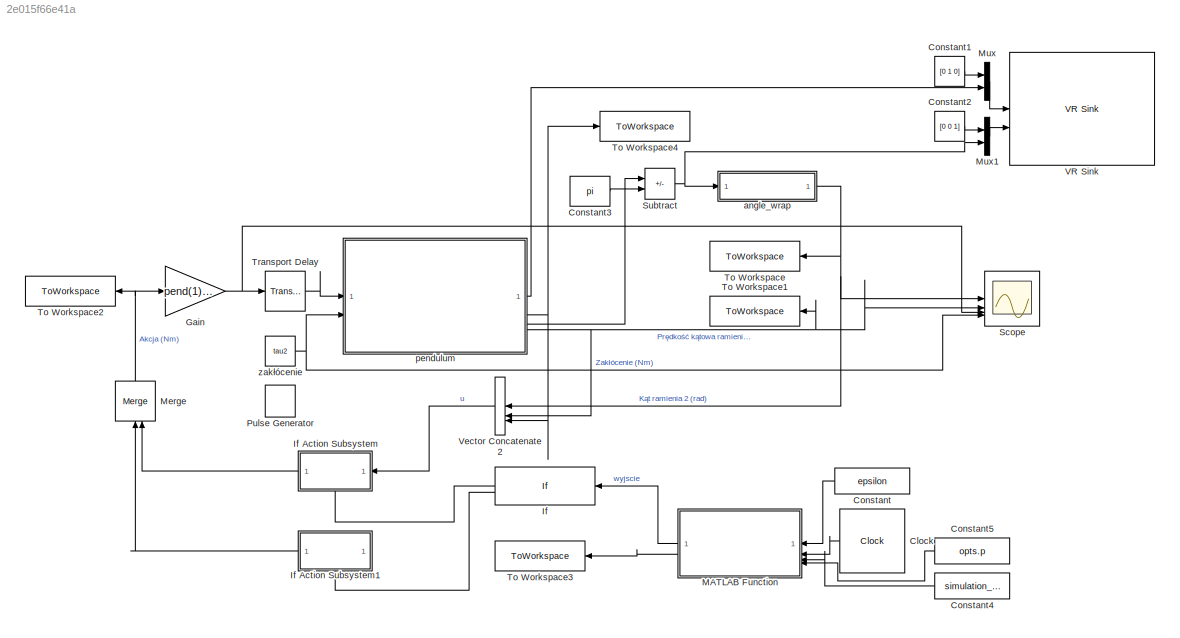
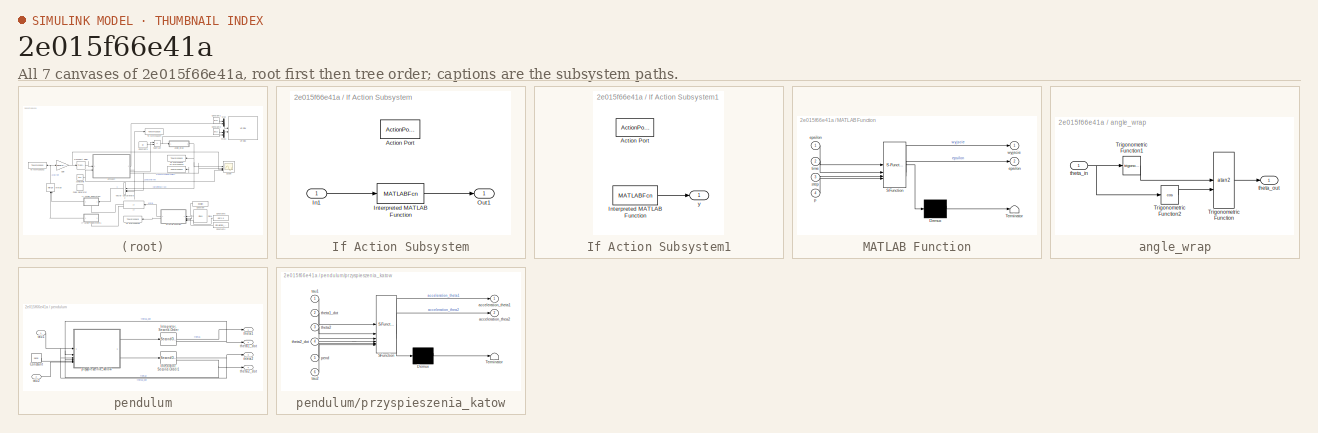
[diagram: thumbnail index - all 7 canvases of the model, root first then tree order]
MODEL slx_2e015f66e41a
KIND model
CONFIG AbsTol = 1e-6
CONFIG EnableMultiTasking = off
CONFIG FixedStep = 0.05
CONFIG MaxStep = auto
CONFIG MinStep = auto
CONFIG PreLoadFcn = theta1_ddot=0;\ntheta2_ddot=0;\n
CONFIG RelTol = 1e-5
CONFIG SampleTimeConstraint = Unconstrained
CONFIG SolverName = ode45
CONFIG StartTime = 0.0
CONFIG StopTime = simulation_time
WORKSPACE source: mxarray member
WORKSPACE epsilon = 1
WORKSPACE pend = [0.036 0 0.05 0.1 0.022 0.05 0.045 0.015 -0.005 -5e-05 9.81 4.356e-05 ... (14 elements, 1x14)]
WORKSPACE simulation_step = 0.025
WORKSPACE simulation_time = 25
WORKSPACE theta0 = 0
WORKSPACE theta1 = 0
WORKSPACE theta10 = 0
WORKSPACE theta10_dot = 10
WORKSPACE theta1_dot = 0
WORKSPACE theta2 = 0
WORKSPACE theta20 = 0
WORKSPACE theta20_dot = 0
WORKSPACE theta2_dot = 0
WORKSPACE theta_dot = 0
BLOCK [Clock] Clock
  DisplayTime = on
  NameLocation = top
BLOCK [Constant] Constant
  NameLocation = top
  SampleTime = simulation_step
  Value = epsilon
BLOCK [Constant] Constant1
  Value = [0 1 0]
BLOCK [Constant] Constant2
  Value = [0 0 1]
BLOCK [Constant] Constant3
  Value = pi
BLOCK [Constant] Constant4
  NameLocation = top
  SampleTime = simulation_step
  Value = simulation_step
BLOCK [Constant] Constant5
  NameLocation = top
  SampleTime = simulation_step
  Value = opts.p
BLOCK [Gain] Gain
  Gain = pend(1)/2
BLOCK [If] If
  IfExpression = u1 > 0.5
  NameLocation = top
BLOCK [SubSystem] If Action Subsystem
  NameLocation = top
  TreatAsAtomicUnit = on
BLOCK [ActionPort] If Action Subsystem/Action Port
  ActionPortLabel = if(u1 > 0.5)
BLOCK [Inport] If Action Subsystem/In1
  SampleTime = simulation_step
BLOCK [MATLABFcn] If Action Subsystem/Interpreted MATLAB Function
  MATLABFcn = a.calculateaction(u)
BLOCK [Outport] If Action Subsystem/Out1
  SampleTime = simulation_step
BLOCK [SubSystem] If Action Subsystem1
  NameLocation = top
  TreatAsAtomicUnit = on
BLOCK [ActionPort] If Action Subsystem1/Action Port
  ActionPortLabel = else
BLOCK [MATLABFcn] If Action Subsystem1/Interpreted MATLAB Function
  MATLABFcn = a.randaction
BLOCK [Outport] If Action Subsystem1/y
  SampleTime = simulation_step
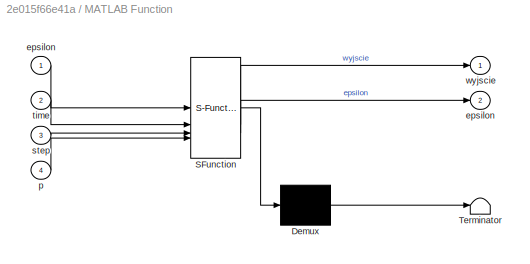
BLOCK [SubSystem] MATLAB Function
  ErrorFcn = Stateflow.Translate.translate
  NameLocation = top
  PermitHierarchicalResolution = ExplicitOnly
  SFBlockType = MATLAB Function
  SystemSampleTime = 0.025
  TreatAsAtomicUnit = on
BLOCK [Demux] MATLAB Function/ Demux 
  Outputs = 1
BLOCK [S-Function] MATLAB Function/ SFunction 
  EnableBusSupport = on
  FunctionName = sf_sfun
  PortCounts = [4 3]
  SFcnIsStateOwnerBlock = off
  SFunctionDeploymentMode = off
  Tag = Stateflow S-Function 2
BLOCK [Terminator] MATLAB Function/ Terminator 
BLOCK [Outport] MATLAB Function/epsilon
  Port = 2
BLOCK [Inport] MATLAB Function/epsilon 
BLOCK [Inport] MATLAB Function/p
  Port = 4
BLOCK [Inport] MATLAB Function/step
  Port = 3
BLOCK [Inport] MATLAB Function/time
  Port = 2
BLOCK [Outport] MATLAB Function/wyjscie
BLOCK [Merge] Merge
  NameLocation = right
BLOCK [Mux] Mux
  DisplayOption = bar
  Inputs = 2
BLOCK [Mux] Mux1
  DisplayOption = bar
  Inputs = 2
BLOCK [DiscretePulseGenerator] Pulse Generator
  Amplitude = 0.066
  Commented = on
  Period = 5
  PhaseDelay = 5
  PulseType = Time based
  PulseWidth = 0.05
BLOCK [Scope] Scope
  Floating = off
  NumInputPorts = 4
  ScopeSpecificationString = Simulink.scopes.TimeScopeBlockCfg('CurrentConfiguration', extmgr.ConfigurationSet(extmgr.Configuration('Core','General UI',true,'FigureColor',[0 0 0]),extmgr.Configuration('Core','Source UI',true),extmgr.Configuration('Sources','WiredSimulink',true),extmgr.Configuration('Visuals','Time Domain',true,'SerializedDisplays',{struct('MinYLimReal','-9.92765','MaxYLimReal','13.3202','YLabelReal','','MinYL...<+1619ch>
BLOCK [Sum] Subtract
  IconShape = rectangular
  Inputs = +-
BLOCK [ToWorkspace] To Workspace
  FixptAsFi = on
  MaxDataPoints = inf
  NameLocation = top
  SampleTime = simulation_step
  VariableName = kat
BLOCK [ToWorkspace] To Workspace1
  FixptAsFi = on
  MaxDataPoints = inf
  NameLocation = top
  SampleTime = simulation_step
  VariableName = predkosc_katowa
BLOCK [ToWorkspace] To Workspace2
  FixptAsFi = on
  MaxDataPoints = inf
  NameLocation = top
  SampleTime = simulation_step
  VariableName = akcja1
BLOCK [ToWorkspace] To Workspace3
  FixptAsFi = on
  MaxDataPoints = inf
  NameLocation = top
  SampleTime = simulation_step
  VariableName = epsilon
BLOCK [ToWorkspace] To Workspace4
  FixptAsFi = on
  MaxDataPoints = inf
  SampleTime = simulation_step
  VariableName = predkosc_katowa_2
BLOCK [TransportDelay] Transport Delay
  DelayTime = opts.t_delay
BLOCK [Reference] VR Sink  REF=vrlib/VR Sink
  InstantiateOnLoad = on
  SourceBlock = vrlib/VR Sink
  SourceType = Virtual Reality Sink
BLOCK [Concatenate] Vector Concatenate2
  NameLocation = top
  NumInputs = 3
BLOCK [SubSystem] angle_wrap
BLOCK [Trigonometry] angle_wrap/Trigonometric Function
  Operator = atan2
BLOCK [Trigonometry] angle_wrap/Trigonometric Function1
BLOCK [Trigonometry] angle_wrap/Trigonometric Function2
  Operator = cos
BLOCK [Inport] angle_wrap/theta_in
  SampleTime = simulation_step
BLOCK [Outport] angle_wrap/theta_out
  SampleTime = simulation_step
  VectorParamsAs1DForOutWhenUnconnected = off
BLOCK [SubSystem] pendulum
BLOCK [Constant] pendulum/Constant
  SampleTime = 1
  Value = pend
BLOCK [SecondOrderIntegrator] pendulum/Integrator, Second-Order
  ICDXDT = theta10_dot
  ICX = theta10
  LimitDXDT = on
  LowerLimitDXDT = -20
  LowerLimitX = 0
  StateNameDXDT = 'theta1_dot'
  StateNameX = 'theta1'
  UpperLimitDXDT = 20
  UpperLimitX = 1
  WrapX = on
  WrappedLowerValueX = 0
  WrappedUpperValueX = 2*pi
BLOCK [SecondOrderIntegrator] pendulum/Integrator, Second-Order1
  ICDXDT = theta20_dot
  ICX = theta20
  LimitDXDT = on
  LowerLimitDXDT = -40
  LowerLimitX = 0
  StateNameDXDT = 'theta2_dot'
  StateNameX = 'theta2'
  UpperLimitDXDT = 40
  UpperLimitX = 1
  WrapX = on
  WrappedLowerValueX = 0
  WrappedUpperValueX = 2*pi
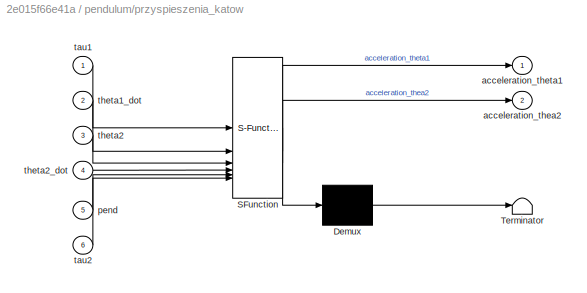
BLOCK [SubSystem] pendulum/przyspieszenia_katow
  ErrorFcn = Stateflow.Translate.translate
  PermitHierarchicalResolution = ExplicitOnly
  SFBlockType = MATLAB Function
  SystemSampleTime = 0.0
  TreatAsAtomicUnit = on
BLOCK [Demux] pendulum/przyspieszenia_katow/ Demux 
  Outputs = 1
BLOCK [S-Function] pendulum/przyspieszenia_katow/ SFunction 
  EnableBusSupport = on
  FunctionName = sf_sfun
  PortCounts = [6 3]
  SFcnIsStateOwnerBlock = off
  SFunctionDeploymentMode = off
  Tag = Stateflow S-Function 3
BLOCK [Terminator] pendulum/przyspieszenia_katow/ Terminator 
BLOCK [Outport] pendulum/przyspieszenia_katow/acceleration_thea2
  Port = 2
BLOCK [Outport] pendulum/przyspieszenia_katow/acceleration_theta1
BLOCK [Inport] pendulum/przyspieszenia_katow/pend
  Port = 5
BLOCK [Inport] pendulum/przyspieszenia_katow/tau1
BLOCK [Inport] pendulum/przyspieszenia_katow/tau2
  Port = 6
BLOCK [Inport] pendulum/przyspieszenia_katow/theta1_dot
  Port = 2
BLOCK [Inport] pendulum/przyspieszenia_katow/theta2
  Port = 3
BLOCK [Inport] pendulum/przyspieszenia_katow/theta2_dot
  Port = 4
BLOCK [Inport] pendulum/tau1
BLOCK [Inport] pendulum/tau2
  Port = 2
BLOCK [Outport] pendulum/theta1
  VectorParamsAs1DForOutWhenUnconnected = off
BLOCK [Outport] pendulum/theta1_dot
  Port = 2
  VectorParamsAs1DForOutWhenUnconnected = off
BLOCK [Outport] pendulum/theta2
  Port = 3
  VectorParamsAs1DForOutWhenUnconnected = off
BLOCK [Outport] pendulum/theta2_dot
  Port = 4
  VectorParamsAs1DForOutWhenUnconnected = off
BLOCK [Constant] zakłócenie
  Value = tau2
LINE Clock:1 -> MATLAB Function:2
LINE Constant1:1 -> Mux:1
LINE Constant2:1 -> Mux1:1
LINE Constant3:1 -> Subtract:2
LINE Constant4:1 -> MATLAB Function:3
LINE Constant5:1 -> MATLAB Function:4
LINE Constant:1 -> MATLAB Function:1
NET Gain:1 -> Scope:3, Transport Delay:1
LINE If Action Subsystem/In1:1 -> If Action Subsystem/Interpreted MATLAB Function:1
LINE If Action Subsystem/Interpreted MATLAB Function:1 -> If Action Subsystem/Out1:1
LINE If Action Subsystem1/Interpreted MATLAB Function:1 -> If Action Subsystem1/y:1
LINE If Action Subsystem1:1 -> Merge:1
LINE If Action Subsystem:1 -> Merge:2
LINE If:1 -> If Action Subsystem:ifaction
LINE If:2 -> If Action Subsystem1:ifaction
LINE MATLAB Function:1 -> If:1
LINE MATLAB Function:2 -> To Workspace3:1
NET Merge:1 -> Gain:1, To Workspace2:1
LINE Mux1:1 -> VR Sink:2
LINE Mux:1 -> VR Sink:1
NET Subtract:1 -> Mux1:2, angle_wrap:1
LINE Transport Delay:1 -> pendulum:1
LINE Vector Concatenate2:1 -> If Action Subsystem:1
LINE angle_wrap/Trigonometric Function1:1 -> angle_wrap/Trigonometric Function:1
LINE angle_wrap/Trigonometric Function2:1 -> angle_wrap/Trigonometric Function:2
LINE angle_wrap/Trigonometric Function:1 -> angle_wrap/theta_out:1
NET angle_wrap/theta_in:1 -> angle_wrap/Trigonometric Function1:1, angle_wrap/Trigonometric Function2:1
NET angle_wrap:1 -> Scope:1, To Workspace:1, Vector Concatenate2:1
LINE pendulum/Constant:1 -> pendulum/przyspieszenia_katow:5
NET pendulum/Integrator, Second-Order1:1 -> pendulum/przyspieszenia_katow:3, pendulum/theta2:1
NET pendulum/Integrator, Second-Order1:2 -> pendulum/przyspieszenia_katow:4, pendulum/theta2_dot:1
LINE pendulum/Integrator, Second-Order:1 -> pendulum/theta1:1
NET pendulum/Integrator, Second-Order:2 -> pendulum/przyspieszenia_katow:2, pendulum/theta1_dot:1
LINE pendulum/przyspieszenia_katow:1 -> pendulum/Integrator, Second-Order:1
LINE pendulum/przyspieszenia_katow:2 -> pendulum/Integrator, Second-Order1:1
LINE pendulum/tau1:1 -> pendulum/przyspieszenia_katow:1
LINE pendulum/tau2:1 -> pendulum/przyspieszenia_katow:6
LINE pendulum:1 -> Mux:2
NET pendulum:2 -> To Workspace4:1, Vector Concatenate2:3
LINE pendulum:3 -> Subtract:1
NET pendulum:4 -> Scope:2, To Workspace1:1, Vector Concatenate2:2
NET zakłócenie:1 -> Scope:4, pendulum:2
note: NET lines group one-source signal fan-out (src -> all destinations, sorted); 1:1 wires keep LINE
CHART MATLAB Function states=1 transitions=1
  STATE_LABEL 'eML_blk_kernel()'
  STATE_LABEL 'SCRIPT:\nfunction [wyjscie,epsilon] = fcn(epsilon,time,step,p)\n\nif(epsilon>=0.02)\nepsilon = max(epsilon*(p)^(time/step), 0.02);\nelse\nepsilon=epsilon;\nend\n\nif (unifrnd(0, 1) < epsilon)\n    wyjscie=0;\nelse\n    wyjscie=1;  \nend'
CHART pendulum/przyspieszenia_katow states=1 transitions=1
  STATE_LABEL 'eML_blk_kernel()'
  STATE_LABEL 'SCRIPT:\nfunction [acceleration_theta1,acceleration_thea2] = fcn1(tau1,theta1_dot, theta2, theta2_dot,pend,tau2)\n\npend(2)=tau2;\n\nX = [pend(14)+pend(13)*(sin(theta2))^2 pend(8)*pend(3)*pend(6)*cos(theta2);pend(8)*pend(3)*pend(6)*cos(theta2) pend(13)]^(-1) * ...\n    ([pend(9)+0.5*theta2_dot*pend(13)*sin(2*theta2) 0.5*theta2_dot*pend(13)*sin(2*theta2) ...\n    - pend(8)*pend(3)*pend(6)*sin(theta2)*thet...<+200ch>'
CHART  states=0 transitions=0
CHART  states=0 transitions=0
